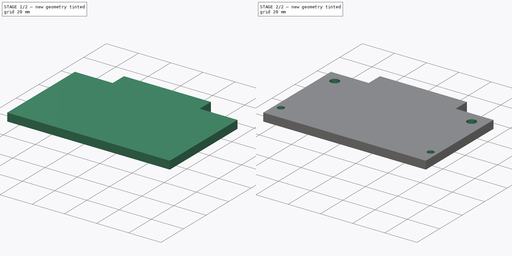
[diagram: build sequence overview — one tinted view per stage of 2, left to right]
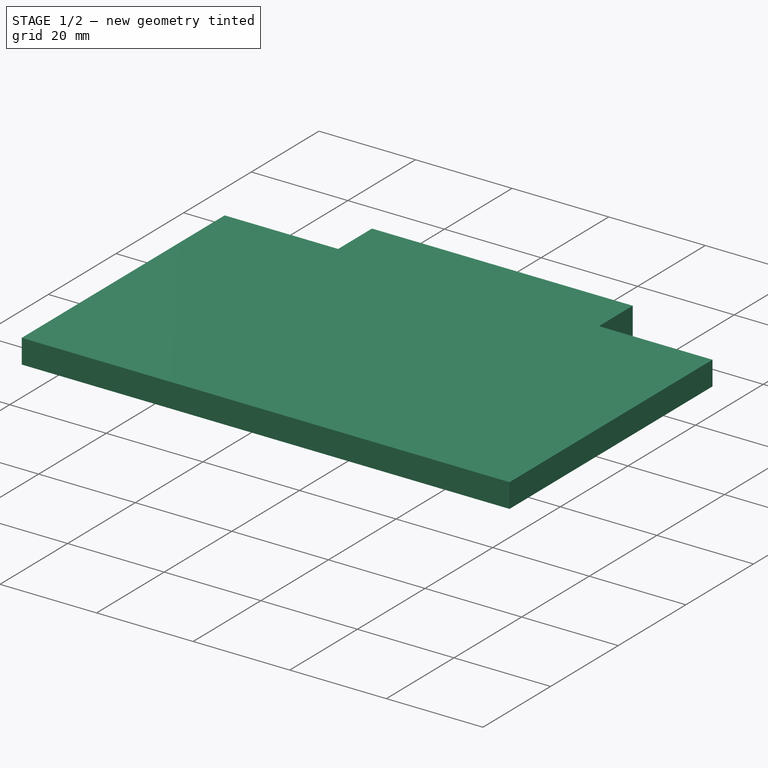
[diagram: stage 1 of 2 — iso view after this stage's code; geometry added in this stage tinted green]
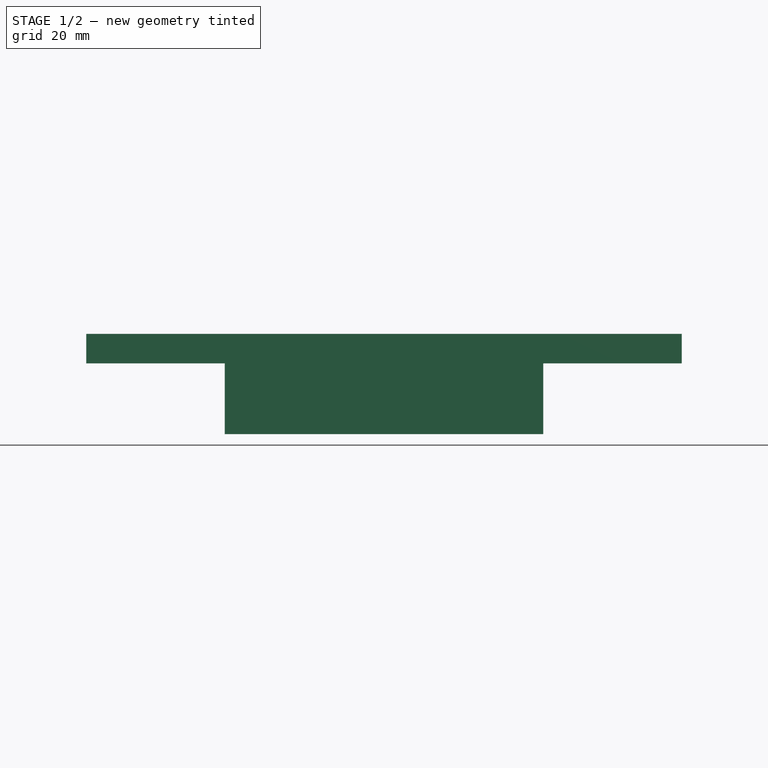
[diagram: stage 1 of 2 — front view after this stage's code; geometry added in this stage tinted green]
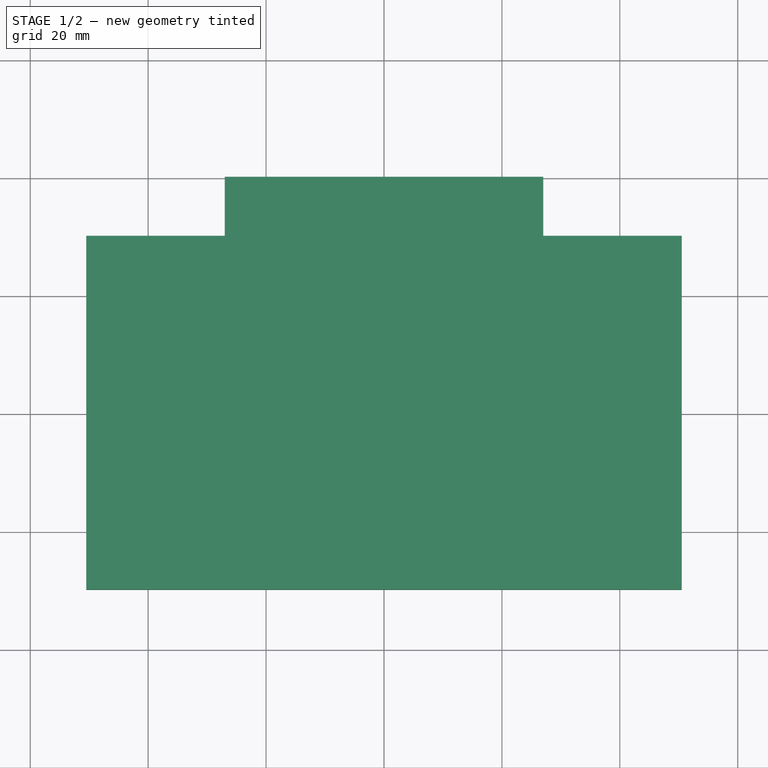
[diagram: stage 1 of 2 — top view after this stage's code; geometry added in this stage tinted green]
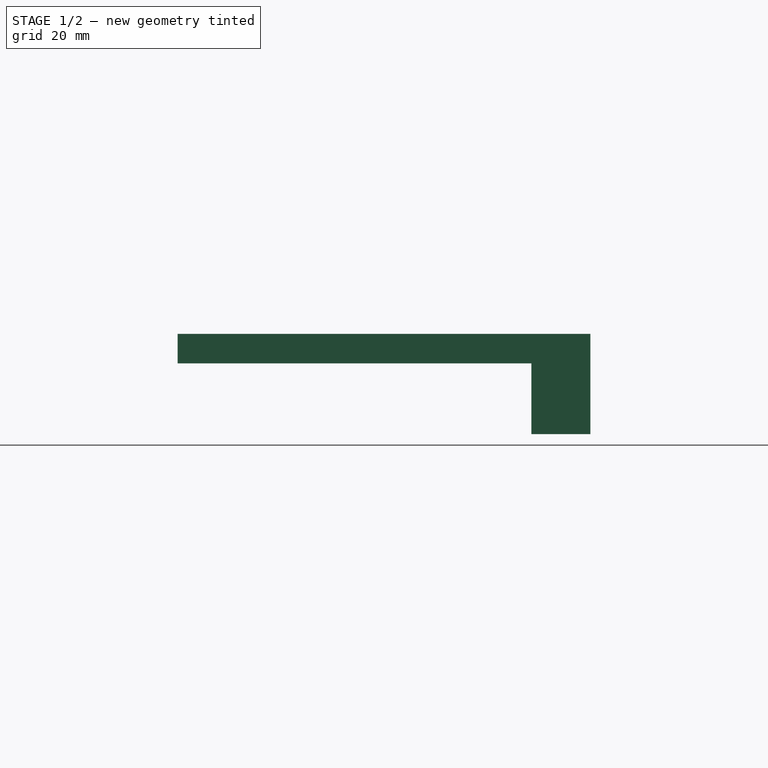
[diagram: stage 1 of 2 — right view after this stage's code; geometry added in this stage tinted green]
FCSTD DOCUMENT  (FreeCAD 0.19R22960 (Git))
Label: led_clamp
License: All rights reserved
LicenseURL: http://en.wikipedia.org/wiki/All_rights_reserved
objects: Sketcher::SketchObject×4, PartDesign::CoordinateSystem×3, App::DocumentObjectGroup×2, PartDesign::Pad×2, App::FeaturePython×1, App::Link×1, PartDesign::Hole×1, PartDesign::Pocket×1, PartDesign::Body×1, App::Part×1
note: 16 computed .brp shape members not serialized (recipe doc carries the construction recipe); baked Part::Feature solids carry a one-line shape summary decoded from their .brp
EXTERNAL_REF file=led_panel.FCStd obj=MH
EXTERNAL_REF file=led_panel.FCStd obj=Model

FEATURE [App::DocumentObjectGroup] Parts
FEATURE [PartDesign::CoordinateSystem] LCS_Origin
  AttacherType = Attacher::AttachEngine3D
  MapMode = 2
  Support = -> [X_Axis]
FEATURE [App::DocumentObjectGroup] Constraints
FEATURE [App::FeaturePython] Variables  # WARN: FeaturePython — macro-defined, semantics opaque (R4)
FEATURE [Sketcher::SketchObject] Sketch
  MapMode = 5
  Support = -> [XY_Plane001]
  sketch-geometry (8):
    g0: LineSegment StartX=50.5 StartY=-30 StartZ=0 EndX=-50.5 EndY=-30 EndZ=0
    g1: LineSegment StartX=-27 StartY=40 StartZ=0 EndX=-27 EndY=30 EndZ=0
    g2: LineSegment StartX=-27 StartY=30 StartZ=0 EndX=-50.5 EndY=30 EndZ=0
    g3: LineSegment StartX=27 StartY=40 StartZ=0 EndX=27 EndY=30 EndZ=0
    g4: LineSegment StartX=27 StartY=30 StartZ=0 EndX=50.5 EndY=30 EndZ=0
    g5: LineSegment StartX=-50.5 StartY=30 StartZ=0 EndX=-50.5 EndY=-30 EndZ=0
    g6: LineSegment StartX=-27 StartY=40 StartZ=0 EndX=27 EndY=40 EndZ=0
    g7: LineSegment StartX=50.5 StartY=30 StartZ=0 EndX=50.5 EndY=-30 EndZ=0
  constraints (22):
    c: Symmetric(g0,g0,g-2)
    c: DistanceX(g0,g0) = 101
    c: Coincident(g1,g2)
    c: Horizontal(g2)
    c: Vertical(g1)
    c: Coincident(g3,g4)
    c: Horizontal(g4)
    c: Vertical(g3)
    c: Equal(g3,g1)
    c: Equal(g2,g4)
    c: Coincident(g5,g2)
    c: Coincident(g5,g0)
    c: Coincident(g6,g1)
    c: Coincident(g6,g3)
    c: Horizontal(g6)
    c: Coincident(g7,g4)
    c: Coincident(g7,g0)
    c: Vertical(g7)
    c: DistanceY(g7,g7) = 60
    c: DistanceY(g3,g3) = 10
    c: DistanceX(g6,g6) = 54
    c: Symmetric(g2,g0,g-1)
FEATURE [PartDesign::Pad] Pad
  Direction = (1,1,1)
  Length = 5
  Length2 = 100
  Profile = -> Sketch
  Type = 0
FEATURE [App::Link] led_panel
  AssemblyType = Asm4EE
  AttachedBy = #MH
  AttachedTo = Parent Assembly#LED_Mount
  LinkPlacement = pos=(5.68e-14,-99.5,6) rot=(0.57735,0.57735,-0.57735;2.0944rad)
  LinkedObject = -> <external led_panel.FCStd>#Model
  Placement = pos=(5.68e-14,-99.5,6) rot=(0.57735,0.57735,-0.57735;2.0944rad)
  expr: Placement = LED_Mount.Placement * AttachmentOffset * led_panel#MH.Placement ^ -1
FEATURE [Sketcher::SketchObject] Sketch001
  ExternalGeometry = -> [Pad]
  MapMode = 5
  Placement = pos=(0,0,0) rot=(1,0,0;3.14159rad)
  Support = -> [Pad]
  sketch-geometry (4):
    g0: LineSegment StartX=-27 StartY=-30 StartZ=0 EndX=27 EndY=-30 EndZ=0
    g1: LineSegment StartX=27 StartY=-30 StartZ=0 EndX=27 EndY=-40 EndZ=0
    g2: LineSegment StartX=27 StartY=-40 StartZ=0 EndX=-27 EndY=-40 EndZ=0
    g3: LineSegment StartX=-27 StartY=-40 StartZ=0 EndX=-27 EndY=-30 EndZ=0
  constraints (10):
    c: Coincident(g0,g1)
    c: Coincident(g1,g2)
    c: Coincident(g2,g3)
    c: Coincident(g3,g0)
    c: Horizontal(g0)
    c: Horizontal(g2)
    c: Vertical(g1)
    c: Vertical(g3)
    c: Coincident(g0,g-4)
    c: Coincident(g1,g-3)
FEATURE [PartDesign::Pad] Pad001
  BaseFeature = -> Pad
  Direction = (1,1,1)
  Length = 12
  Length2 = 100
  Profile = -> Sketch001
  Type = 0
FEATURE [PartDesign::CoordinateSystem] MH
  AttacherType = Attacher::AttachEngine3D
  MapMode = 11
  Placement = pos=(23,40,-6) rot=(0.57735,0.57735,0.57735;4.18879rad)
  Support = -> [Hole]
FEATURE [Sketcher::SketchObject] Sketch003
  ExternalGeometry = -> [Hole]
  MapMode = 5
  Placement = pos=(0,0,0) rot=(1,0,0;3.14159rad)
  Support = -> [Hole]
  sketch-geometry (12):
    g0: Circle CenterX=-42.5 CenterY=-22 CenterZ=0 NormalX=0 NormalY=0 NormalZ=1 AngleXU=0 Radius=2.75
    g1: Circle CenterX=42.5 CenterY=-22 CenterZ=0 NormalX=0 NormalY=0 NormalZ=1 AngleXU=0 Radius=2.75
    g2: LineSegment [constr] StartX=-42.5 StartY=-22 StartZ=0 EndX=-50.5 EndY=-22 EndZ=0
    g3: LineSegment [constr] StartX=-42.5 StartY=-22 StartZ=0 EndX=-42.5 EndY=-30 EndZ=0
    g4: LineSegment [constr] StartX=42.5 StartY=-22 StartZ=0 EndX=42.5 EndY=-30 EndZ=0
    g5: LineSegment [constr] StartX=42.5 StartY=-22 StartZ=0 EndX=50.5 EndY=-22 EndZ=0
    g6: Circle CenterX=-46.5 CenterY=20 CenterZ=0 NormalX=0 NormalY=0 NormalZ=1 AngleXU=0 Radius=2
    g7: Circle CenterX=46.5 CenterY=20 CenterZ=0 NormalX=0 NormalY=0 NormalZ=1 AngleXU=0 Radius=2
    g8: LineSegment [constr] StartX=46.5 StartY=20 StartZ=0 EndX=50.5 EndY=20 EndZ=0
    g9: LineSegment [constr] StartX=-46.5 StartY=20 StartZ=0 EndX=-50.5 EndY=20 EndZ=0
    g10: LineSegment [constr] StartX=-46.5 StartY=20 StartZ=0 EndX=-46.5 EndY=-30 EndZ=0
    g11: LineSegment [constr] StartX=46.5 StartY=20 StartZ=0 EndX=46.5 EndY=-30 EndZ=0
  constraints (36):
    c: Coincident(g2,g0)
    c: PointOnObject(g2,g-4)
    c: Horizontal(g2)
    c: Coincident(g3,g0)
    c: PointOnObject(g3,g-6)
    c: Vertical(g3)
    c: Coincident(g4,g1)
    c: PointOnObject(g4,g-7)
    c: Vertical(g4)
    c: Coincident(g5,g1)
    c: PointOnObject(g5,g-3)
    c: Horizontal(g5)
    c: Equal(g3,g2)
    c: Equal(g2,g4)
    c: Equal(g4,g5)
    c: DistanceX(g2,g2) = 8
    c: Coincident(g8,g7)
    c: PointOnObject(g8,g-3)
    c: Horizontal(g8)
    c: Coincident(g9,g6)
    c: PointOnObject(g9,g-4)
    c: Horizontal(g9)
    c: Equal(g9,g8)
    c: DistanceX(g9,g9) = 4
    c: DistanceY(g-6,g6) = 50
    c: Coincident(g10,g6)
    c: PointOnObject(g10,g-6)
    c: Vertical(g10)
    c: Coincident(g11,g7)
    c: PointOnObject(g11,g-7)
    c: Vertical(g11)
    c: Equal(g11,g10)
    c: Radius(g6) = 2
    c: Radius(g0) = 2.75
    c: Equal(g1,g0)
    c: Equal(g6,g7)
FEATURE [PartDesign::Pocket] Pocket
  BaseFeature = -> Hole
  Length = 5
  Length2 = 100
  Profile = -> Sketch003
  Type = 1
FEATURE [PartDesign::Body] Body
  Group = -> [Sketch,Pad,Sketch001,Pad001,Sketch002,Hole,Sketch003,Pocket]
  Origin = -> Origin001
  Tip = -> Pocket
FEATURE [PartDesign::CoordinateSystem] LED_Mount
  AttacherType = Attacher::AttachEngine3D
  MapMode = 11
  Placement = pos=(42.5,22,5) rot=(0.707107,-0.707107,0;3.14159rad)
  Support = -> [Pocket]
FEATURE [App::Part] Model
  Configuration = 0
  Group = -> [LCS_Origin,Constraints,Variables,MH,Body,led_panel,LED_Mount]
  Origin = -> Origin
  Type = Assembly4 Model

RESOLVED EXTERNAL PARTS (link-assembly join: the EXTERNAL_REF files above that resolve inside this repo's crawl, each included once):
---- part led_panel.FCStd = doc fcstd_8f47cd63a03a ----
FCSTD DOCUMENT  (FreeCAD 0.19R22960 (Git))
Label: led_panel
License: All rights reserved
LicenseURL: http://en.wikipedia.org/wiki/All_rights_reserved
objects: PartDesign::Fillet×4, App::DocumentObjectGroup×2, PartDesign::CoordinateSystem×2, Sketcher::SketchObject×2, App::FeaturePython×1, PartDesign::Pad×1, PartDesign::Pocket×1, PartDesign::Body×1, App::Part×1
note: 17 computed .brp shape members not serialized (recipe doc carries the construction recipe); baked Part::Feature solids carry a one-line shape summary decoded from their .brp

FEATURE [App::DocumentObjectGroup] Parts
FEATURE [PartDesign::CoordinateSystem] LCS_Origin
  AttacherType = Attacher::AttachEngine3D
  MapMode = 2
  Support = -> [X_Axis]
FEATURE [App::DocumentObjectGroup] Constraints
FEATURE [App::FeaturePython] Variables  # WARN: FeaturePython — macro-defined, semantics opaque (R4)
FEATURE [Sketcher::SketchObject] Sketch
  MapMode = 5
  Placement = pos=(0,0,0) rot=(0.57735,0.57735,0.57735;2.0944rad)
  Support = -> [YZ_Plane001]
  sketch-geometry (4):
    g0: LineSegment StartX=-50.5 StartY=129.5 StartZ=0 EndX=50.5 EndY=129.5 EndZ=0
    g1: LineSegment StartX=50.5 StartY=129.5 StartZ=0 EndX=50.5 EndY=-129.5 EndZ=0
    g2: LineSegment StartX=50.5 StartY=-129.5 StartZ=0 EndX=-50.5 EndY=-129.5 EndZ=0
    g3: LineSegment StartX=-50.5 StartY=-129.5 StartZ=0 EndX=-50.5 EndY=129.5 EndZ=0
  constraints (10):
    c: Coincident(g0,g1)
    c: Coincident(g1,g2)
    c: Coincident(g2,g3)
    c: Coincident(g3,g0)
    c: Horizontal(g2)
    c: Vertical(g3)
    c: DistanceX(g2,g2) = 101
    c: DistanceY(g1,g1) = 259
    c: Symmetric(g0,g0,g-2)
    c: Symmetric(g0,g1,g-1)
FEATURE [PartDesign::Pad] Pad
  Direction = (1,1,1)
  Length = 1
  Length2 = 100
  Placement = pos=(0,0,0) rot=(0.57735,0.57735,0.57735;2.0944rad)
  Profile = -> Sketch
  Type = 0
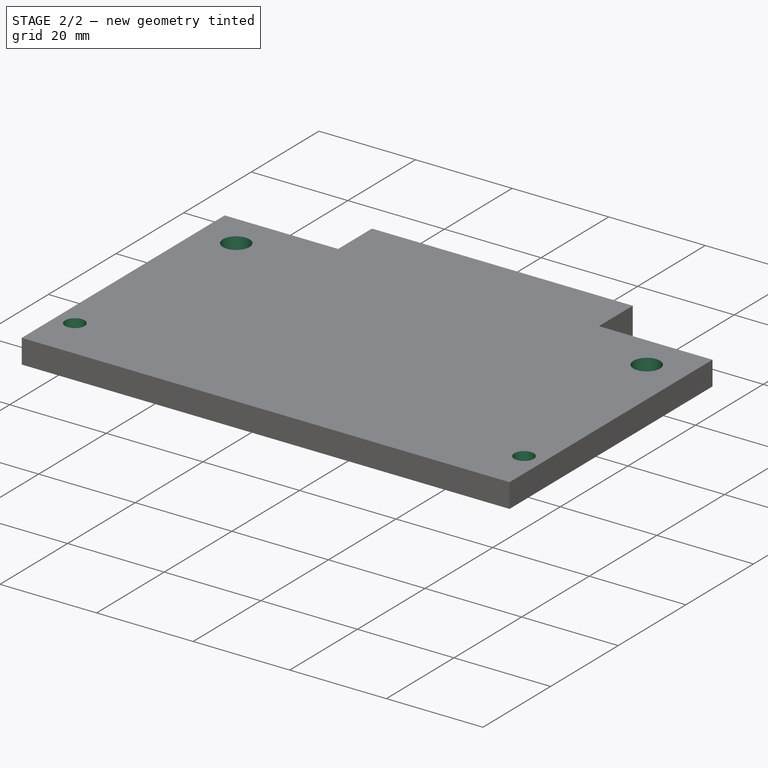
[diagram: stage 2 of 2 — iso view after this stage's code; geometry added in this stage tinted green]
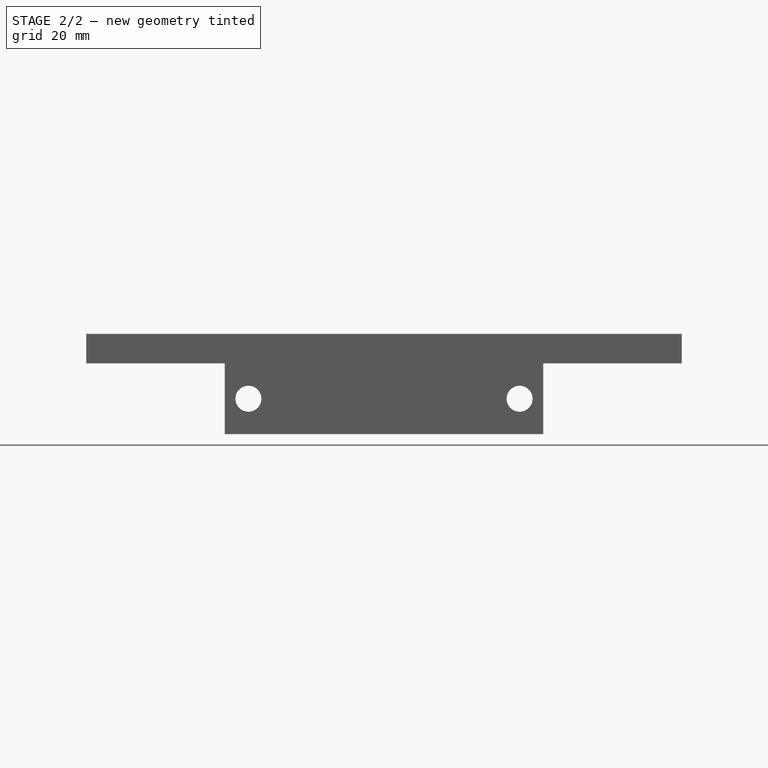
[diagram: stage 2 of 2 — front view after this stage's code; geometry added in this stage tinted green]
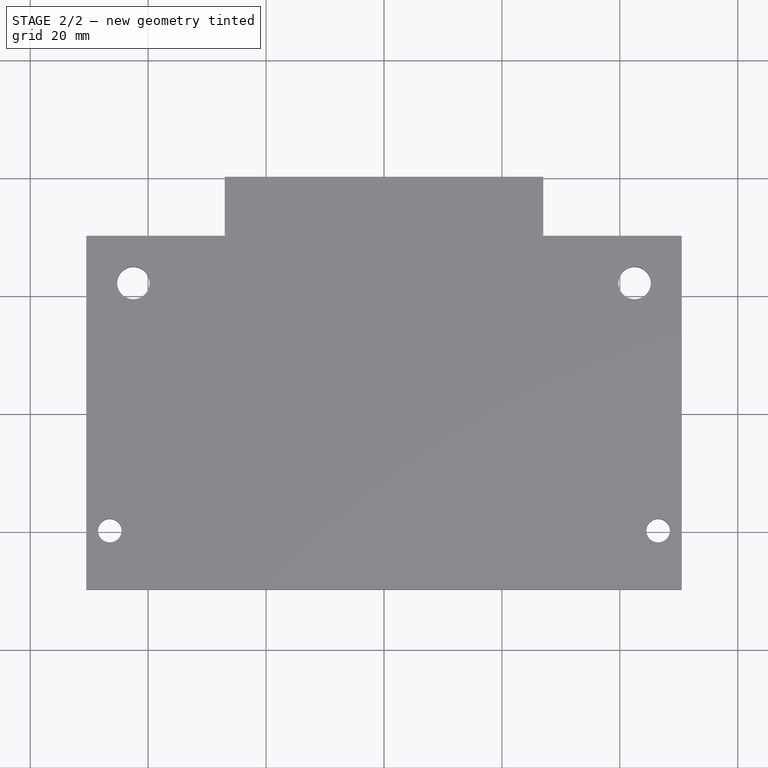
[diagram: stage 2 of 2 — top view after this stage's code; geometry added in this stage tinted green]
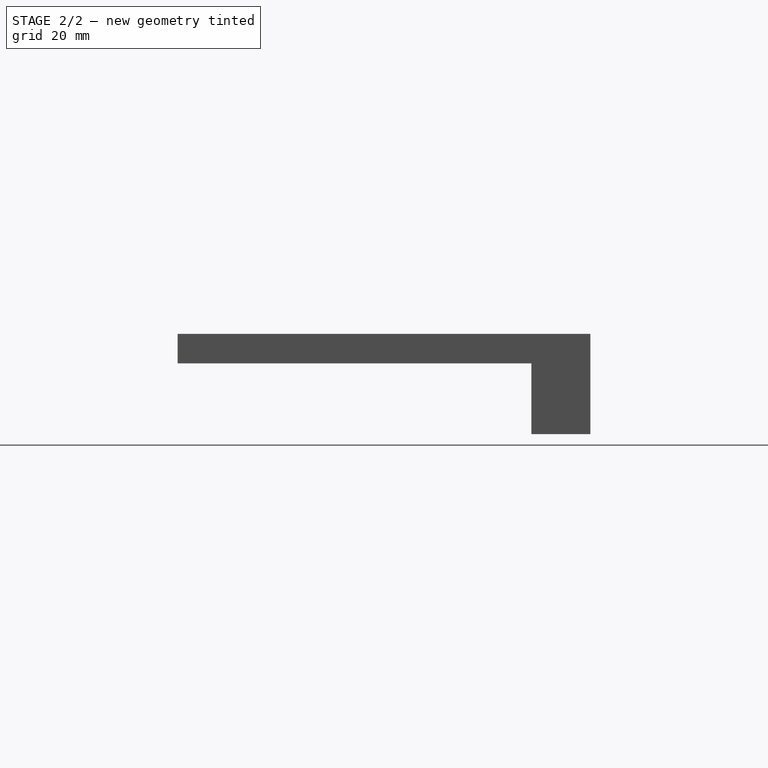
[diagram: stage 2 of 2 — right view after this stage's code; geometry added in this stage tinted green]
FEATURE [Sketcher::SketchObject] Sketch002
  ExternalGeometry = -> [Pad001]
  MapMode = 5
  Placement = pos=(0,30,0) rot=(1,0,0;1.5708rad)
  Support = -> [Pad001]
  sketch-geometry (9):
    g0: Circle CenterX=-23 CenterY=-6 CenterZ=0 NormalX=0 NormalY=0 NormalZ=1 AngleXU=0 Radius=2.1
    g1: Circle CenterX=23 CenterY=-6 CenterZ=0 NormalX=0 NormalY=0 NormalZ=1 AngleXU=0 Radius=2.1
    g2: LineSegment [constr] StartX=-23 StartY=-6 StartZ=0 EndX=-23 EndY=-12 EndZ=0
    g3: LineSegment [constr] StartX=23 StartY=-6 StartZ=0 EndX=23 EndY=-12 EndZ=0
    g4: LineSegment [constr] StartX=23 StartY=-6 StartZ=0 EndX=23 EndY=0 EndZ=0
    g5: LineSegment [constr] StartX=-23 StartY=-6 StartZ=0 EndX=-27 EndY=-6 EndZ=0
    g6: LineSegment [constr] StartX=23 StartY=-6 StartZ=0 EndX=27 EndY=-6 EndZ=0
    g7: LineSegment [constr] StartX=-23 StartY=-6 StartZ=0 EndX=-23 EndY=0 EndZ=0
    g8: LineSegment [constr] StartX=-23 StartY=-6 StartZ=0 EndX=23 EndY=-6 EndZ=0
  constraints (27):
    c: Coincident(g2,g0)
    c: PointOnObject(g2,g-6)
    c: Vertical(g2)
    c: Coincident(g3,g1)
    c: PointOnObject(g3,g-6)
    c: Vertical(g3)
    c: Coincident(g4,g1)
    c: PointOnObject(g4,g-5)
    c: Vertical(g4)
    c: Equal(g4,g3)
    c: Equal(g0,g1)
    c: Coincident(g5,g0)
    c: PointOnObject(g5,g-3)
    c: Horizontal(g5)
    c: Coincident(g6,g1)
    c: PointOnObject(g6,g-4)
    c: Horizontal(g6)
    c: Equal(g5,g6)
    c: DistanceX(g5,g5) = 4
    c: Radius(g0) = 2.1
    c: Coincident(g7,g0)
    c: PointOnObject(g7,g-5)
    c: Vertical(g7)
    c: Equal(g7,g2)
    c: Coincident(g8,g0)
    c: Coincident(g8,g1)
    c: DistanceX(g8,g8) = 46
FEATURE [PartDesign::Hole] Hole
  BaseFeature = -> Pad001
  Depth = 25
  DepthType = 0
  Diameter = 4.4
  DrillPoint = 1
  DrillPointAngle = 118
  HoleCutCountersinkAngle = 90
  HoleCutDepth = 0
  HoleCutDiameter = 0
  HoleCutType = 0
  ModelActualThread = false
  Profile = -> Sketch002
  Tapered = false
  TaperedAngle = 90
  ThreadAngle = 0
  ThreadClass = 0
  ThreadCutOffInner = 0
  ThreadCutOffOuter = 0
  ThreadDirection = 0
  ThreadFit = 0
  ThreadPitch = 0
  ThreadSize = 5
  ThreadType = 1
  Threaded = false
FEATURE [Sketcher::SketchObject] Sketch001
  ExternalGeometry = -> [Pad]
  MapMode = 5
  Placement = pos=(1,-2e-16,2e-16) rot=(0.57735,0.57735,0.57735;2.0944rad)
  Support = -> [Pad]
  sketch-geometry (24):
    g0: Circle CenterX=42.5 CenterY=121.5 CenterZ=0 NormalX=0 NormalY=0 NormalZ=1 AngleXU=0 Radius=2.75
    g1: Circle CenterX=-42.5 CenterY=121.5 CenterZ=0 NormalX=0 NormalY=0 NormalZ=1 AngleXU=0 Radius=2.75
    g2: Circle CenterX=-42.5 CenterY=-121.5 CenterZ=0 NormalX=0 NormalY=0 NormalZ=1 AngleXU=0 Radius=2.75
    g3: Circle CenterX=42.5 CenterY=-121.5 CenterZ=0 NormalX=0 NormalY=0 NormalZ=1 AngleXU=0 Radius=2.75
    g4: LineSegment [constr] StartX=42.5 StartY=-121.5 StartZ=0 EndX=42.5 EndY=-129.5 EndZ=0
    g5: LineSegment [constr] StartX=42.5 StartY=-121.5 StartZ=0 EndX=50.5 EndY=-121.5 EndZ=0
    g6: LineSegment [constr] StartX=-42.5 StartY=-121.5 StartZ=0 EndX=-42.5 EndY=-129.5 EndZ=0
    g7: LineSegment [constr] StartX=-42.5 StartY=-121.5 StartZ=0 EndX=-50.5 EndY=-121.5 EndZ=0
    g8: LineSegment [constr] StartX=-42.5 StartY=121.5 StartZ=0 EndX=-42.5 EndY=129.5 EndZ=0
    g9: LineSegment [constr] StartX=-42.5 StartY=121.5 StartZ=0 EndX=-50.5 EndY=121.5 EndZ=0
    g10: LineSegment [constr] StartX=42.5 StartY=121.5 StartZ=0 EndX=42.5 EndY=129.5 EndZ=0
    g11: LineSegment [constr] StartX=42.5 StartY=121.5 StartZ=0 EndX=50.5 EndY=121.5 EndZ=0
    g12: Circle CenterX=-46.5 CenterY=79.5 CenterZ=0 NormalX=0 NormalY=0 NormalZ=1 AngleXU=0 Radius=2
    g13: Circle CenterX=46.5 CenterY=79.5 CenterZ=0 NormalX=0 NormalY=0 NormalZ=1 AngleXU=0 Radius=2
    g14: Circle CenterX=-46.5 CenterY=-79.5 CenterZ=0 NormalX=0 NormalY=0 NormalZ=1 AngleXU=0 Radius=2
    g15: Circle CenterX=46.5 CenterY=-79.5 CenterZ=0 NormalX=0 NormalY=0 NormalZ=1 AngleXU=0 Radius=2
    g16: LineSegment [constr] StartX=-46.5 StartY=79.5 StartZ=0 EndX=-46.5 EndY=129.5 EndZ=0
    g17: LineSegment [constr] StartX=-46.5 StartY=79.5 StartZ=0 EndX=-50.5 EndY=79.5 EndZ=0
    g18: LineSegment [constr] StartX=46.5 StartY=79.5 StartZ=0 EndX=50.5 EndY=79.5 EndZ=0
    g19: LineSegment [constr] StartX=46.5 StartY=79.5 StartZ=0 EndX=46.5 EndY=129.5 EndZ=0
    g20: LineSegment [constr] StartX=46.5 StartY=-79.5 StartZ=0 EndX=46.5 EndY=-129.5 EndZ=0
    g21: LineSegment [constr] StartX=46.5 StartY=-79.5 StartZ=0 EndX=50.5 EndY=-79.5 EndZ=0
    g22: LineSegment [constr] StartX=-46.5 StartY=-79.5 StartZ=0 EndX=-46.5 EndY=-129.5 EndZ=0
    g23: LineSegment [constr] StartX=-46.5 StartY=-79.5 StartZ=0 EndX=-50.5 EndY=-79.5 EndZ=0
  constraints (72):
    c: Coincident(g4,g3)
    c: PointOnObject(g4,g-6)
    c: Vertical(g4)
    c: Coincident(g5,g4)
    c: PointOnObject(g5,g-4)
    c: Horizontal(g5)
    c: Coincident(g6,g2)
    c: PointOnObject(g6,g-6)
    c: Vertical(g6)
    c: Coincident(g7,g6)
    c: PointOnObject(g7,g-5)
    c: Horizontal(g7)
    c: Coincident(g8,g1)
    c: PointOnObject(g8,g-3)
    c: Vertical(g8)
    c: Coincident(g9,g8)
    c: PointOnObject(g9,g-5)
    c: Horizontal(g9)
    c: Coincident(g10,g0)
    c: PointOnObject(g10,g-3)
    c: Vertical(g10)
    c: Coincident(g11,g10)
    c: PointOnObject(g11,g-4)
    c: Horizontal(g11)
    c: Equal(g11,g10)
    c: Equal(g10,g8)
    c: Equal(g8,g9)
    c: Equal(g9,g4)
    c: Equal(g4,g5)
    c: Equal(g5,g6)
    c: Equal(g6,g7)
    c: Equal(g2,g3)
    c: Equal(g3,g1)
    c: Equal(g1,g0)
    c: Radius(g2) = 2.75
    c: DistanceX(g7,g7) = 8
    c: Coincident(g16,g12)
    c: PointOnObject(g16,g-3)
    c: Vertical(g16)
    c: Coincident(g17,g12)
    c: PointOnObject(g17,g-5)
    c: Horizontal(g17)
    c: Coincident(g18,g13)
    c: PointOnObject(g18,g-4)
    c: Horizontal(g18)
    c: Coincident(g19,g13)
    c: PointOnObject(g19,g-3)
    c: Vertical(g19)
    c: Coincident(g20,g15)
    c: PointOnObject(g20,g-6)
    c: Vertical(g20)
    c: Coincident(g21,g15)
    c: PointOnObject(g21,g-4)
    c: Horizontal(g21)
    c: Coincident(g22,g14)
    c: PointOnObject(g22,g-6)
    c: Vertical(g22)
    c: Coincident(g23,g14)
    c: PointOnObject(g23,g-5)
    c: Horizontal(g23)
    c: Equal(g16,g19)
    c: Equal(g19,g20)
    c: Equal(g20,g22)
    c: DistanceY(g19,g19) = 50
    c: Equal(g18,g17)
    c: Equal(g17,g21)
    c: Equal(g21,g23)
    c: DistanceX(g18,g18) = 4
    c: Equal(g12,g13)
    c: Equal(g13,g15)
    c: Equal(g15,g14)
    c: Radius(g13) = 2
FEATURE [PartDesign::Pocket] Pocket
  BaseFeature = -> Pad
  Length = 5
  Length2 = 100
  Placement = pos=(0,0,0) rot=(0.57735,0.57735,0.57735;2.0944rad)
  Profile = -> Sketch001
  Type = 1
FEATURE [PartDesign::Fillet] Fillet
  Base = -> Pocket [Edge2]
  BaseFeature = -> Pocket
  Placement = pos=(0,0,0) rot=(0.57735,0.57735,0.57735;2.0944rad)
  Radius = 8
  SupportTransform = false
FEATURE [PartDesign::Fillet] Fillet001
  Base = -> Fillet [Edge3]
  BaseFeature = -> Fillet
  Placement = pos=(0,0,0) rot=(0.57735,0.57735,0.57735;2.0944rad)
  Radius = 8
  SupportTransform = false
FEATURE [PartDesign::Fillet] Fillet002
  Base = -> Fillet001 [Edge34]
  BaseFeature = -> Fillet001
  Placement = pos=(0,0,0) rot=(0.57735,0.57735,0.57735;2.0944rad)
  Radius = 8
  SupportTransform = false
FEATURE [PartDesign::Fillet] Fillet003
  Base = -> Fillet002 [Edge23]
  BaseFeature = -> Fillet002
  Placement = pos=(0,0,0) rot=(0.57735,0.57735,0.57735;2.0944rad)
  Radius = 8
  SupportTransform = false
FEATURE [PartDesign::Body] Body
  Group = -> [Sketch,Pad,Sketch001,Pocket,Fillet,Fillet001,Fillet002,Fillet003]
  Origin = -> Origin001
  Tip = -> Fillet003
FEATURE [PartDesign::CoordinateSystem] MH
  AttacherType = Attacher::AttachEngine3D
  MapMode = 11
  Placement = pos=(1,42.5,-121.5) rot=(0.707107,0,0.707107;3.14159rad)
  Support = -> [Fillet003]
FEATURE [App::Part] Model
  Configuration = 0
  Group = -> [LCS_Origin,Constraints,Variables,MH,Body]
  Origin = -> Origin
  Type = Assembly4 Model
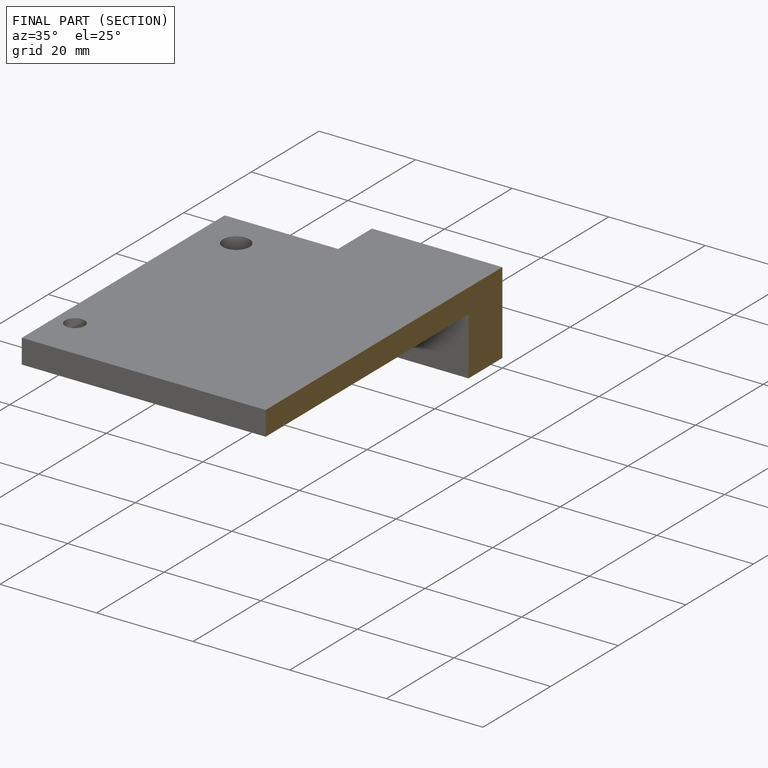
[diagram: finished part — half-section view (interior)]
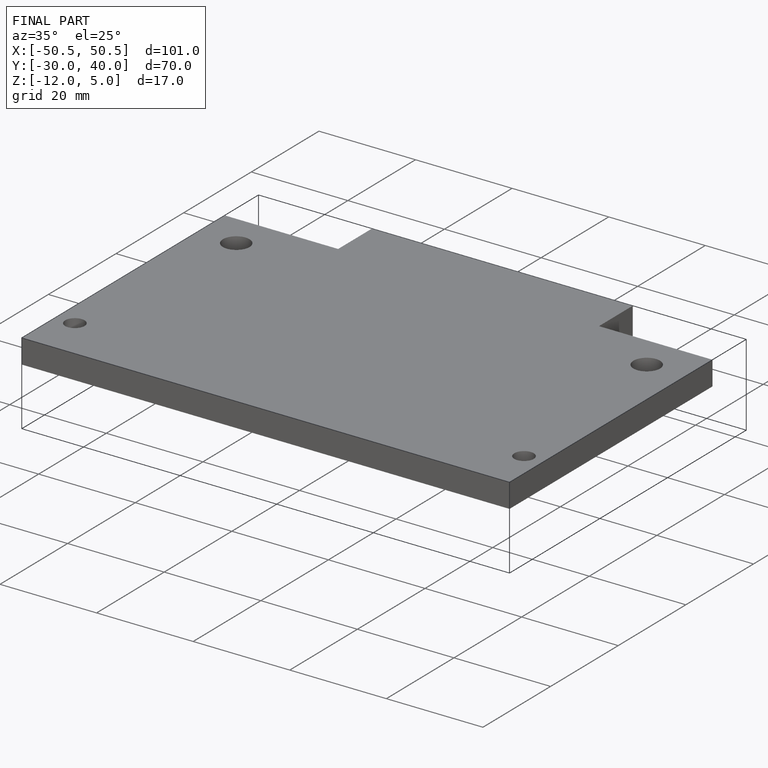
[diagram: finished part — iso view with bounding-box wireframe]
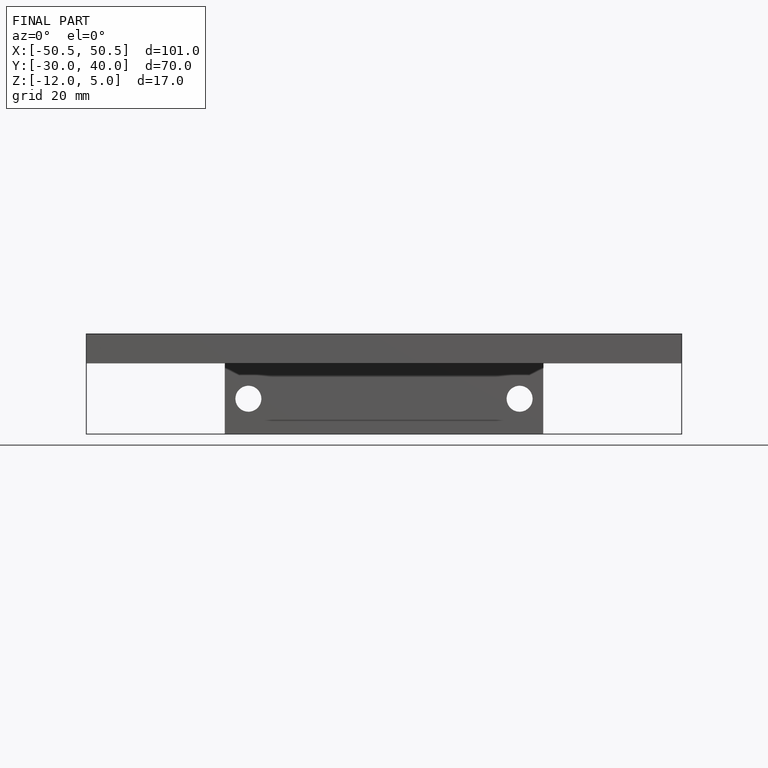
[diagram: finished part — front view with bounding-box wireframe]
